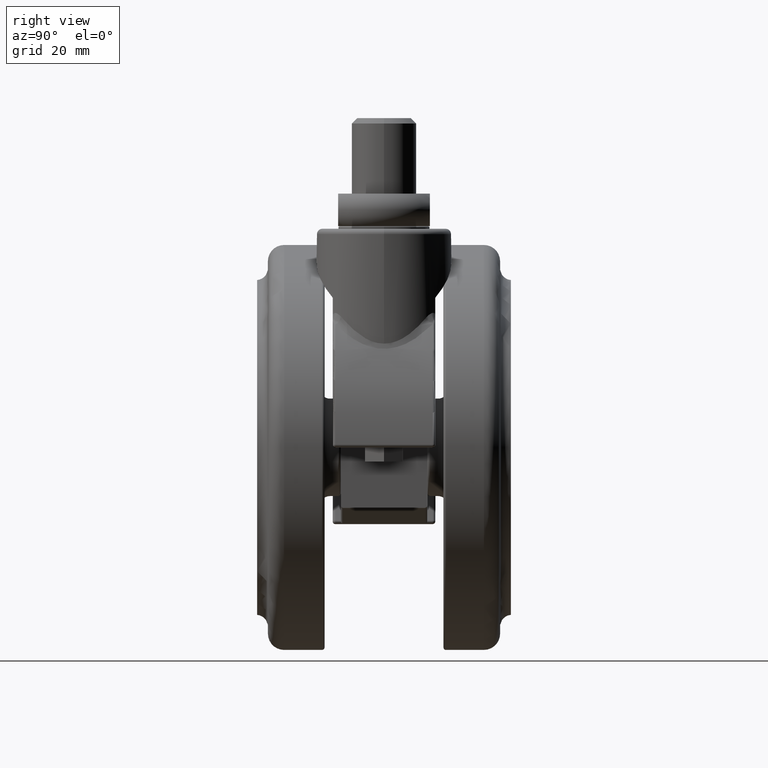
[diagram: clean part render]
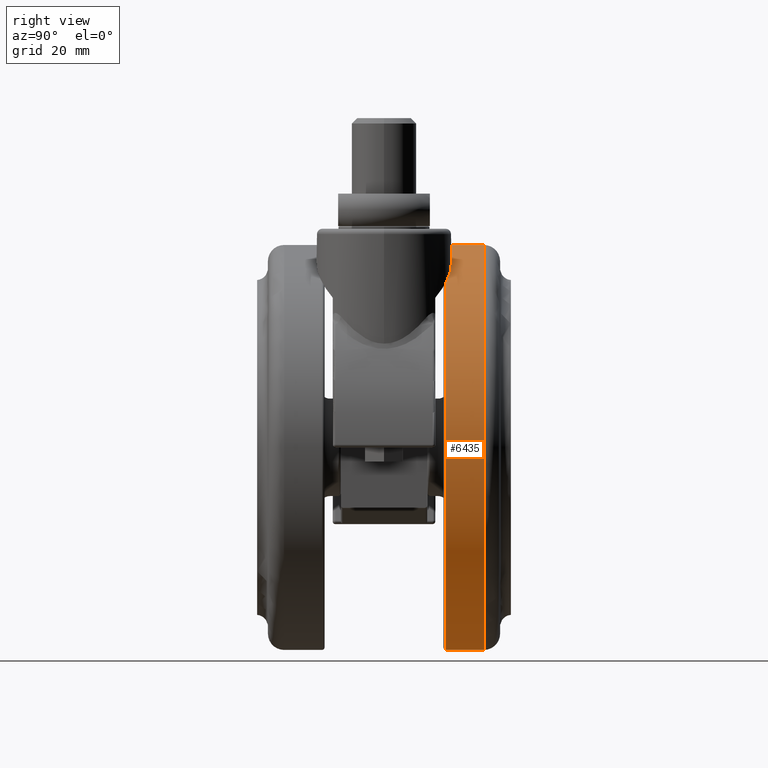
[diagram: same view with one face highlighted and labeled with its STEP entity id]
A machine part, right view. The second image highlights one B-rep face of the part: STEP entity #6435.
In plain terms, the highlighted cylindrical surface (partial cylindrical patch) has radius 37.5 mm, axis along (0, 1, 0).
Its self-contained STEP definition (entity closure, byte-faithful):
#283 = VERTEX_POINT ( 'NONE', #5630 ) ;
#508 = EDGE_CURVE ( 'NONE', #5990, #5752, #6668, .T. ) ;
#1081 = EDGE_CURVE ( 'NONE', #283, #7405, #1470, .T. ) ;
#1350 = CIRCLE ( 'NONE', #5100, 37.50000000000000000 ) ;
#1470 = LINE ( 'NONE', #7777, #5088 ) ;
#1739 = CARTESIAN_POINT ( 'NONE',  ( -20.00000000000000000, 11.50000000000000000, -40.50000000000000000 ) ) ;
#1805 = DIRECTION ( 'NONE',  ( 1.505161159488250100E-015, 1.000000000000000000, 0.0000000000000000000 ) ) ;
#1891 = EDGE_CURVE ( 'NONE', #5990, #283, #2708, .T. ) ;
#2268 = ORIENTED_EDGE ( 'NONE', *, *, #508, .T. ) ;
#2420 = DIRECTION ( 'NONE',  ( 0.0000000000000000000, 0.0000000000000000000, -1.000000000000000000 ) ) ;
#2700 = FACE_OUTER_BOUND ( 'NONE', #4091, .T. ) ;
#2708 = CIRCLE ( 'NONE', #5623, 37.50000000000000000 ) ;
#2903 = DIRECTION ( 'NONE',  ( -1.505161159488250100E-015, -1.000000000000000000, 0.0000000000000000000 ) ) ;
#3078 = VECTOR ( 'NONE', #7970, 1000.000000000000000 ) ;
#3741 = CARTESIAN_POINT ( 'NONE',  ( -20.00000000000000000, 3.010322318976494600E-014, -40.50000000000000000 ) ) ;
#4091 = EDGE_LOOP ( 'NONE', ( #4387, #7077, #2268, #8241 ) ) ;
#4340 = CYLINDRICAL_SURFACE ( 'NONE', #7518, 37.50000000000000000 ) ;
#4387 = ORIENTED_EDGE ( 'NONE', *, *, #1081, .F. ) ;
#4825 = EDGE_CURVE ( 'NONE', #5752, #7405, #1350, .T. ) ;
#5046 = CARTESIAN_POINT ( 'NONE',  ( -20.00000000000000400, 18.50000000000000000, -3.000000000000000400 ) ) ;
#5088 = VECTOR ( 'NONE', #1805, 1000.000000000000000 ) ;
#5100 = AXIS2_PLACEMENT_3D ( 'NONE', #6966, #2903, #7594 ) ;
#5623 = AXIS2_PLACEMENT_3D ( 'NONE', #1739, #6483, #2420 ) ;
#5630 = CARTESIAN_POINT ( 'NONE',  ( -19.99999999999998200, 11.50000000000000000, -3.000000000000002700 ) ) ;
#5752 = VERTEX_POINT ( 'NONE', #6542 ) ;
#5990 = VERTEX_POINT ( 'NONE', #6677 ) ;
#6435 = ADVANCED_FACE ( 'NONE', ( #2700 ), #4340, .T. ) ;
#6483 = DIRECTION ( 'NONE',  ( -1.505161159488250100E-015, -1.000000000000000000, 0.0000000000000000000 ) ) ;
#6542 = CARTESIAN_POINT ( 'NONE',  ( -20.00000000000000000, 18.50000000000000000, -78.00000000000001400 ) ) ;
#6631 = CARTESIAN_POINT ( 'NONE',  ( -20.00000000000000000, 3.010322318976494600E-014, -78.00000000000000000 ) ) ;
#6668 = LINE ( 'NONE', #6631, #3078 ) ;
#6677 = CARTESIAN_POINT ( 'NONE',  ( -20.00000000000000000, 11.50000000000000000, -78.00000000000000000 ) ) ;
#6966 = CARTESIAN_POINT ( 'NONE',  ( -20.00000000000000000, 18.50000000000000000, -40.50000000000000000 ) ) ;
#7077 = ORIENTED_EDGE ( 'NONE', *, *, #1891, .F. ) ;
#7088 = DIRECTION ( 'NONE',  ( 1.505161159488250100E-015, 1.000000000000000000, 0.0000000000000000000 ) ) ;
#7405 = VERTEX_POINT ( 'NONE', #5046 ) ;
#7518 = AXIS2_PLACEMENT_3D ( 'NONE', #3741, #7088, #8409 ) ;
#7594 = DIRECTION ( 'NONE',  ( 0.0000000000000000000, 0.0000000000000000000, -1.000000000000000000 ) ) ;
#7777 = CARTESIAN_POINT ( 'NONE',  ( -20.00000000000000400, 3.010322318976495200E-014, -3.000000000000002700 ) ) ;
#7970 = DIRECTION ( 'NONE',  ( 1.505161159488250100E-015, 1.000000000000000000, 0.0000000000000000000 ) ) ;
#8241 = ORIENTED_EDGE ( 'NONE', *, *, #4825, .T. ) ;
#8409 = DIRECTION ( 'NONE',  ( 0.0000000000000000000, 0.0000000000000000000, -1.000000000000000000 ) ) ;